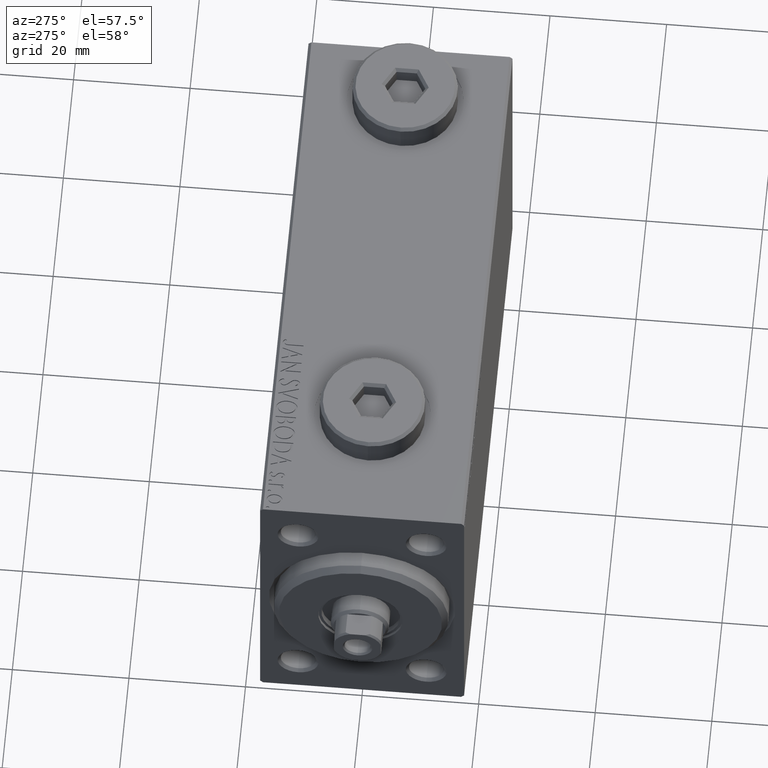
[diagram: clean part render]
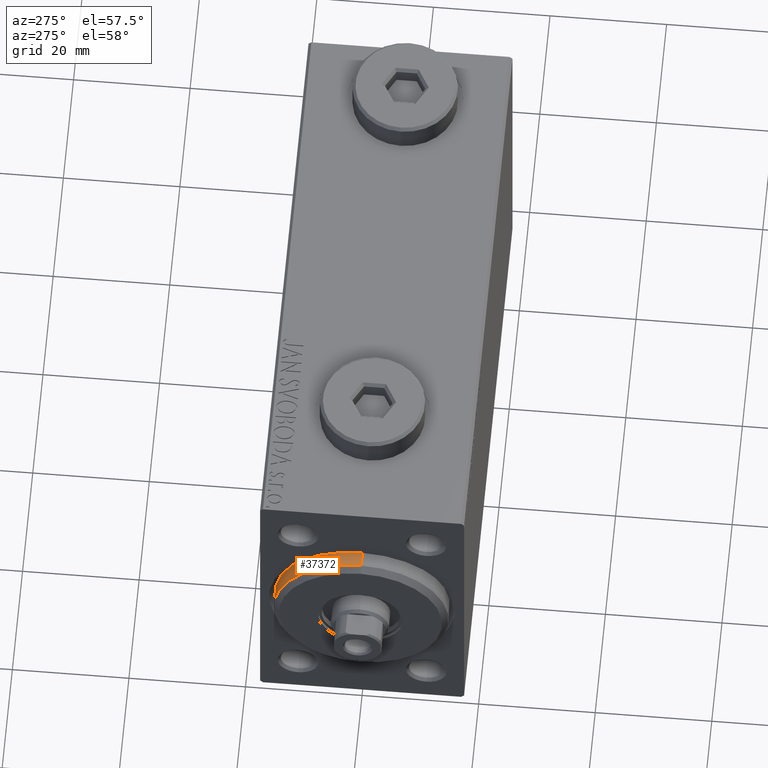
[diagram: same view with one face highlighted and labeled with its STEP entity id]
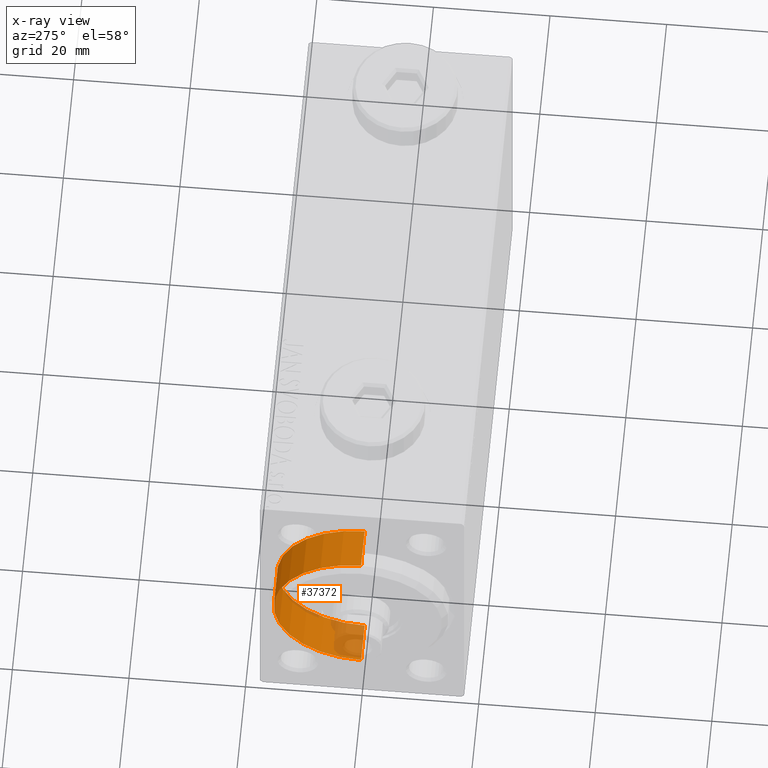
[diagram: x-ray of the same camera — body ghosted, the highlighted face saturated]
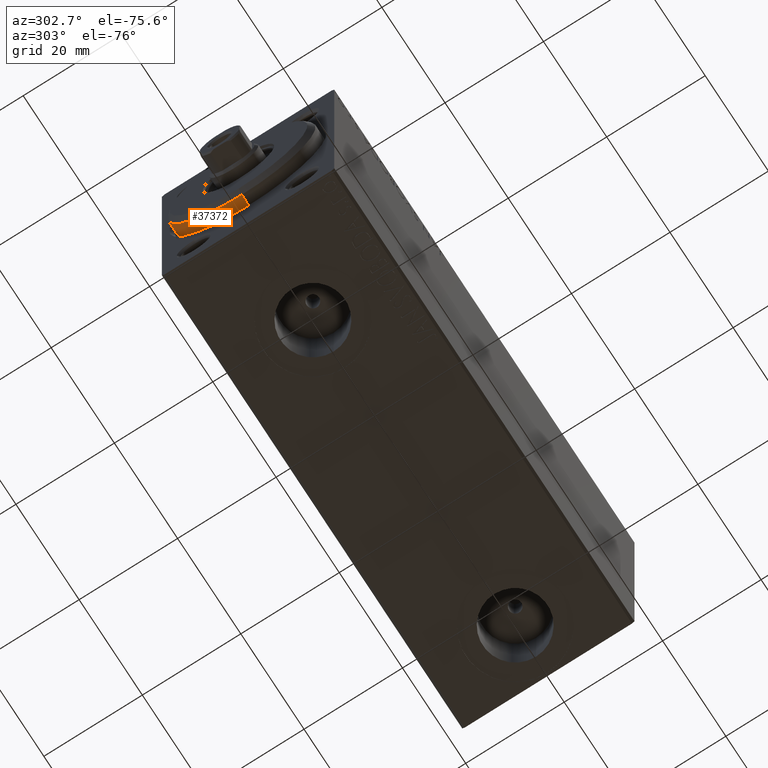
[diagram: same view with one face highlighted and labeled with its STEP entity id]
A machine part, auxiliary view. The second image highlights one B-rep face of the part: STEP entity #37372.
The next image is the same camera in x-ray: the body ghosted, the highlighted face saturated — about 18% of this face is hidden behind the body in this view.
A second angle (auxiliary view) of the same face is appended — the face is thin or edge-on in the first view.
In plain terms, the highlighted cylindrical surface (partial cylindrical patch) has radius 15 mm, axis along (1, -0, -0).
Its self-contained STEP definition (entity closure, byte-faithful):
#404 = VERTEX_POINT ( 'NONE', #7337 ) ;
#545 = CARTESIAN_POINT ( 'NONE',  ( 3.000000000000000000, 0.000000000000000000, 15.00000000000000000 ) ) ;
#629 = EDGE_CURVE ( 'NONE', #404, #36050, #15891, .T. ) ;
#2950 = DIRECTION ( 'NONE',  ( 0.000000000000000000, 0.000000000000000000, 1.000000000000000000 ) ) ;
#3287 = VECTOR ( 'NONE', #42478, 1000.000000000000000 ) ;
#3369 = DIRECTION ( 'NONE',  ( -1.000000000000000000, 0.000000000000000000, 0.000000000000000000 ) ) ;
#6811 = CARTESIAN_POINT ( 'NONE',  ( 1.999999999999995781, 0.000000000000000000, 0.000000000000000000 ) ) ;
#7337 = CARTESIAN_POINT ( 'NONE',  ( -5.000000000000000000, 1.836970198721029589E-15, -15.00000000000000000 ) ) ;
#7984 = EDGE_LOOP ( 'NONE', ( #42667, #40913, #21430, #28631 ) ) ;
#9868 = CYLINDRICAL_SURFACE ( 'NONE', #34027, 15.00000000000000000 ) ;
#10547 = VECTOR ( 'NONE', #35288, 1000.000000000000000 ) ;
#14256 = CARTESIAN_POINT ( 'NONE',  ( -5.000000000000000000, 0.000000000000000000, 15.00000000000000000 ) ) ;
#15891 = CIRCLE ( 'NONE', #44537, 15.00000000000000000 ) ;
#16553 = FACE_OUTER_BOUND ( 'NONE', #7984, .T. ) ;
#17674 = EDGE_CURVE ( 'NONE', #26463, #404, #42939, .T. ) ;
#19708 = CIRCLE ( 'NONE', #41143, 15.00000000000000000 ) ;
#21073 = CARTESIAN_POINT ( 'NONE',  ( 1.999999999999995781, 0.000000000000000000, 15.00000000000000000 ) ) ;
#21234 = LINE ( 'NONE', #545, #10547 ) ;
#21430 = ORIENTED_EDGE ( 'NONE', *, *, #44389, .T. ) ;
#21898 = VERTEX_POINT ( 'NONE', #21073 ) ;
#24517 = DIRECTION ( 'NONE',  ( 0.000000000000000000, 0.000000000000000000, -1.000000000000000000 ) ) ;
#26463 = VERTEX_POINT ( 'NONE', #26885 ) ;
#26885 = CARTESIAN_POINT ( 'NONE',  ( 1.999999999999995781, 1.836970198721029589E-15, -15.00000000000000000 ) ) ;
#28631 = ORIENTED_EDGE ( 'NONE', *, *, #629, .F. ) ;
#30359 = CARTESIAN_POINT ( 'NONE',  ( 3.000000000000000000, 0.000000000000000000, 0.000000000000000000 ) ) ;
#32483 = EDGE_CURVE ( 'NONE', #26463, #21898, #19708, .T. ) ;
#34027 = AXIS2_PLACEMENT_3D ( 'NONE', #30359, #41615, #37938 ) ;
#34468 = DIRECTION ( 'NONE',  ( -1.000000000000000000, 0.000000000000000000, 0.000000000000000000 ) ) ;
#35288 = DIRECTION ( 'NONE',  ( -1.000000000000000000, -0.000000000000000000, -0.000000000000000000 ) ) ;
#36050 = VERTEX_POINT ( 'NONE', #14256 ) ;
#37372 = ADVANCED_FACE ( 'NONE', ( #16553 ), #9868, .T. ) ;
#37917 = CARTESIAN_POINT ( 'NONE',  ( -5.000000000000000000, 0.000000000000000000, 0.000000000000000000 ) ) ;
#37938 = DIRECTION ( 'NONE',  ( 0.000000000000000000, 0.000000000000000000, 1.000000000000000000 ) ) ;
#39482 = CARTESIAN_POINT ( 'NONE',  ( 3.000000000000000000, 1.836970198721029589E-15, -15.00000000000000000 ) ) ;
#40913 = ORIENTED_EDGE ( 'NONE', *, *, #32483, .T. ) ;
#41143 = AXIS2_PLACEMENT_3D ( 'NONE', #6811, #3369, #24517 ) ;
#41615 = DIRECTION ( 'NONE',  ( -1.000000000000000000, -0.000000000000000000, -0.000000000000000000 ) ) ;
#42478 = DIRECTION ( 'NONE',  ( -1.000000000000000000, -0.000000000000000000, -0.000000000000000000 ) ) ;
#42667 = ORIENTED_EDGE ( 'NONE', *, *, #17674, .F. ) ;
#42939 = LINE ( 'NONE', #39482, #3287 ) ;
#44389 = EDGE_CURVE ( 'NONE', #21898, #36050, #21234, .T. ) ;
#44537 = AXIS2_PLACEMENT_3D ( 'NONE', #37917, #34468, #2950 ) ;